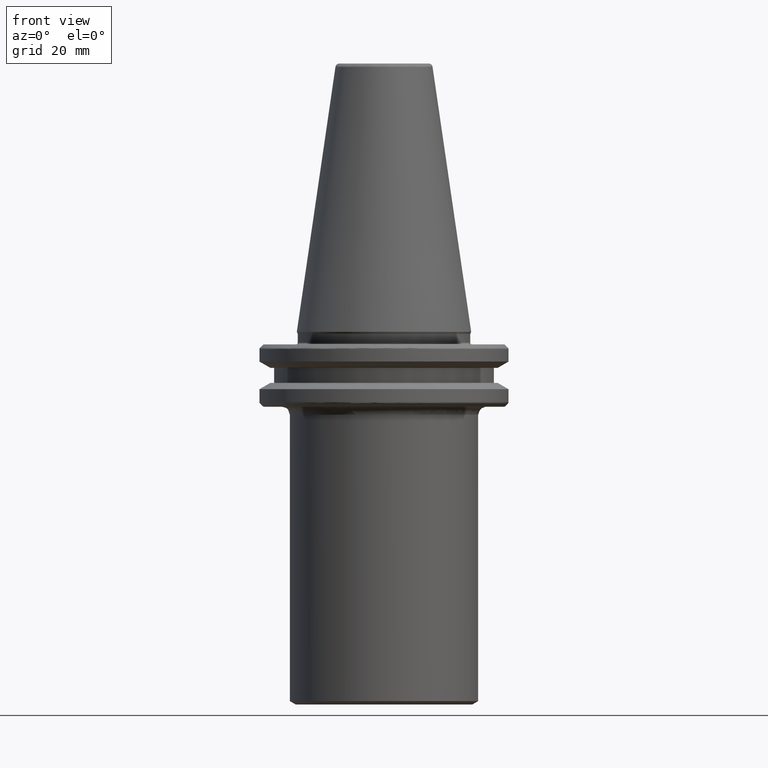
[diagram: clean part render]
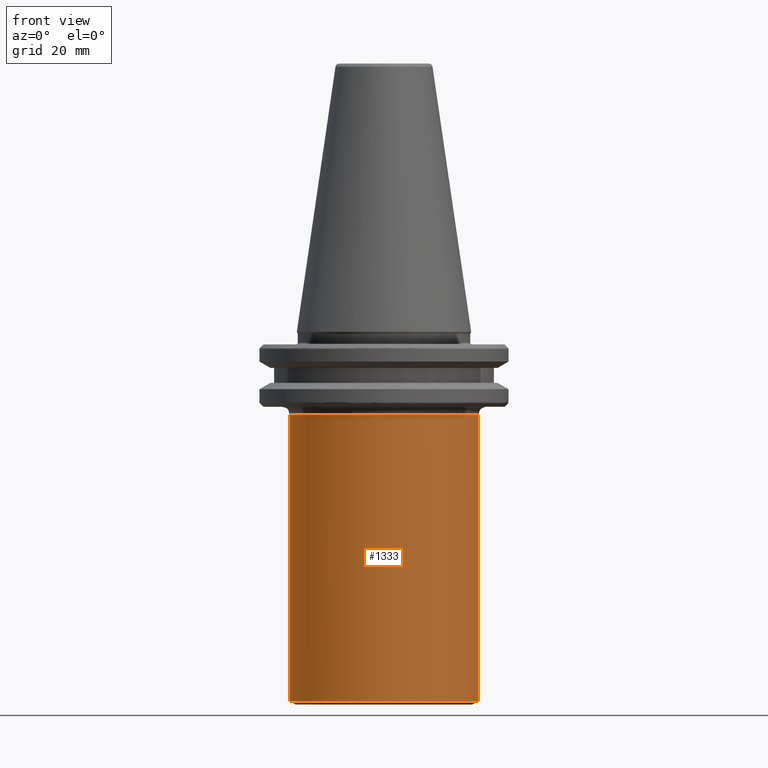
[diagram: same view with one face highlighted and labeled with its STEP entity id]
A machine part, front view. The second image highlights one B-rep face of the part: STEP entity #1333.
In plain terms, the highlighted cylindrical surface (partial cylindrical patch) has radius 24 mm, axis along (0, 0, 1).
Its self-contained STEP definition (entity closure, byte-faithful):
#38 = DIRECTION ( 'NONE',  ( 0.0000000000000000000, 0.0000000000000000000, 1.000000000000000000 ) ) ;
#50 = DIRECTION ( 'NONE',  ( 0.0000000000000000000, 0.0000000000000000000, 1.000000000000000000 ) ) ;
#57 = CARTESIAN_POINT ( 'NONE',  ( 24.00000000000000000, 0.0000000000000000000, 0.0000000000000000000 ) ) ;
#164 = CIRCLE ( 'NONE', #1771, 24.00000000000000000 ) ;
#289 = DIRECTION ( 'NONE',  ( 1.000000000000000000, 0.0000000000000000000, 0.0000000000000000000 ) ) ;
#291 = CARTESIAN_POINT ( 'NONE',  ( -24.00000000000000000, 2.939152317953647900E-015, 0.0000000000000000000 ) ) ;
#293 = DIRECTION ( 'NONE',  ( 0.0000000000000000000, 0.0000000000000000000, 1.000000000000000000 ) ) ;
#295 = CARTESIAN_POINT ( 'NONE',  ( 0.0000000000000000000, 0.0000000000000000000, -21.10000000000000900 ) ) ;
#303 = CARTESIAN_POINT ( 'NONE',  ( 0.0000000000000000000, 0.0000000000000000000, -21.10000000000000900 ) ) ;
#340 = DIRECTION ( 'NONE',  ( 0.0000000000000000000, 0.0000000000000000000, 1.000000000000000000 ) ) ;
#400 = CARTESIAN_POINT ( 'NONE',  ( 24.00000000000000000, 0.0000000000000000000, -94.13397459621555200 ) ) ;
#508 = EDGE_CURVE ( 'NONE', #2766, #2395, #1823, .T. ) ;
#511 = AXIS2_PLACEMENT_3D ( 'NONE', #1860, #1855, #1852 ) ;
#570 = DIRECTION ( 'NONE',  ( 1.000000000000000000, 8.881784197001252300E-016, 0.0000000000000000000 ) ) ;
#806 = CARTESIAN_POINT ( 'NONE',  ( -24.00000000000000000, 2.939152317953647900E-015, -94.13397459621555200 ) ) ;
#828 = CARTESIAN_POINT ( 'NONE',  ( 0.0000000000000000000, 0.0000000000000000000, 0.0000000000000000000 ) ) ;
#879 = EDGE_CURVE ( 'NONE', #2689, #2395, #1932, .T. ) ;
#891 = AXIS2_PLACEMENT_3D ( 'NONE', #295, #293, #289 ) ;
#935 = EDGE_CURVE ( 'NONE', #2396, #2766, #2196, .T. ) ;
#1084 = ORIENTED_EDGE ( 'NONE', *, *, #935, .T. ) ;
#1191 = LINE ( 'NONE', #291, #3192 ) ;
#1274 = VECTOR ( 'NONE', #50, 1000.000000000000000 ) ;
#1307 = EDGE_LOOP ( 'NONE', ( #2739, #1845, #1084, #1984, #1350, #3172 ) ) ;
#1327 = CARTESIAN_POINT ( 'NONE',  ( 24.00000000000000000, 0.0000000000000000000, -21.10000000000000900 ) ) ;
#1333 = ADVANCED_FACE ( 'NONE', ( #2812 ), #2567, .T. ) ;
#1350 = ORIENTED_EDGE ( 'NONE', *, *, #879, .F. ) ;
#1771 = AXIS2_PLACEMENT_3D ( 'NONE', #303, #2095, #570 ) ;
#1801 = VERTEX_POINT ( 'NONE', #1865 ) ;
#1823 = CIRCLE ( 'NONE', #511, 24.00000000000000000 ) ;
#1830 = DIRECTION ( 'NONE',  ( 0.0000000000000000000, 0.0000000000000000000, 1.000000000000000000 ) ) ;
#1835 = AXIS2_PLACEMENT_3D ( 'NONE', #1879, #340, #2131 ) ;
#1842 = DIRECTION ( 'NONE',  ( 1.000000000000000000, 0.0000000000000000000, 0.0000000000000000000 ) ) ;
#1845 = ORIENTED_EDGE ( 'NONE', *, *, #3154, .T. ) ;
#1852 = DIRECTION ( 'NONE',  ( 1.000000000000000000, 0.0000000000000000000, 0.0000000000000000000 ) ) ;
#1855 = DIRECTION ( 'NONE',  ( -0.0000000000000000000, -0.0000000000000000000, -1.000000000000000000 ) ) ;
#1860 = CARTESIAN_POINT ( 'NONE',  ( 0.0000000000000000000, 0.0000000000000000000, -21.10000000000000900 ) ) ;
#1865 = CARTESIAN_POINT ( 'NONE',  ( -24.00000000000000000, 2.939152317953647900E-015, -21.10000000000000900 ) ) ;
#1879 = CARTESIAN_POINT ( 'NONE',  ( 0.0000000000000000000, 0.0000000000000000000, -94.13397459621555200 ) ) ;
#1932 = CIRCLE ( 'NONE', #891, 24.00000000000000000 ) ;
#1984 = ORIENTED_EDGE ( 'NONE', *, *, #508, .T. ) ;
#2086 = VERTEX_POINT ( 'NONE', #806 ) ;
#2095 = DIRECTION ( 'NONE',  ( -0.0000000000000000000, -0.0000000000000000000, -1.000000000000000000 ) ) ;
#2131 = DIRECTION ( 'NONE',  ( 1.000000000000000000, 0.0000000000000000000, 0.0000000000000000000 ) ) ;
#2196 = LINE ( 'NONE', #57, #1274 ) ;
#2395 = VERTEX_POINT ( 'NONE', #3120 ) ;
#2396 = VERTEX_POINT ( 'NONE', #400 ) ;
#2567 = CYLINDRICAL_SURFACE ( 'NONE', #2896, 24.00000000000000000 ) ;
#2589 = CARTESIAN_POINT ( 'NONE',  ( -7.162367861454905300, -22.90634162447591400, -21.10000000000000900 ) ) ;
#2684 = EDGE_CURVE ( 'NONE', #2086, #1801, #1191, .T. ) ;
#2689 = VERTEX_POINT ( 'NONE', #2589 ) ;
#2737 = EDGE_CURVE ( 'NONE', #2689, #1801, #164, .T. ) ;
#2739 = ORIENTED_EDGE ( 'NONE', *, *, #2684, .F. ) ;
#2766 = VERTEX_POINT ( 'NONE', #1327 ) ;
#2812 = FACE_OUTER_BOUND ( 'NONE', #1307, .T. ) ;
#2896 = AXIS2_PLACEMENT_3D ( 'NONE', #828, #38, #1842 ) ;
#3100 = CIRCLE ( 'NONE', #1835, 24.00000000000000000 ) ;
#3120 = CARTESIAN_POINT ( 'NONE',  ( 7.162367861454899100, -22.90634162447592100, -21.10000000000000900 ) ) ;
#3154 = EDGE_CURVE ( 'NONE', #2086, #2396, #3100, .T. ) ;
#3172 = ORIENTED_EDGE ( 'NONE', *, *, #2737, .T. ) ;
#3192 = VECTOR ( 'NONE', #1830, 1000.000000000000000 ) ;